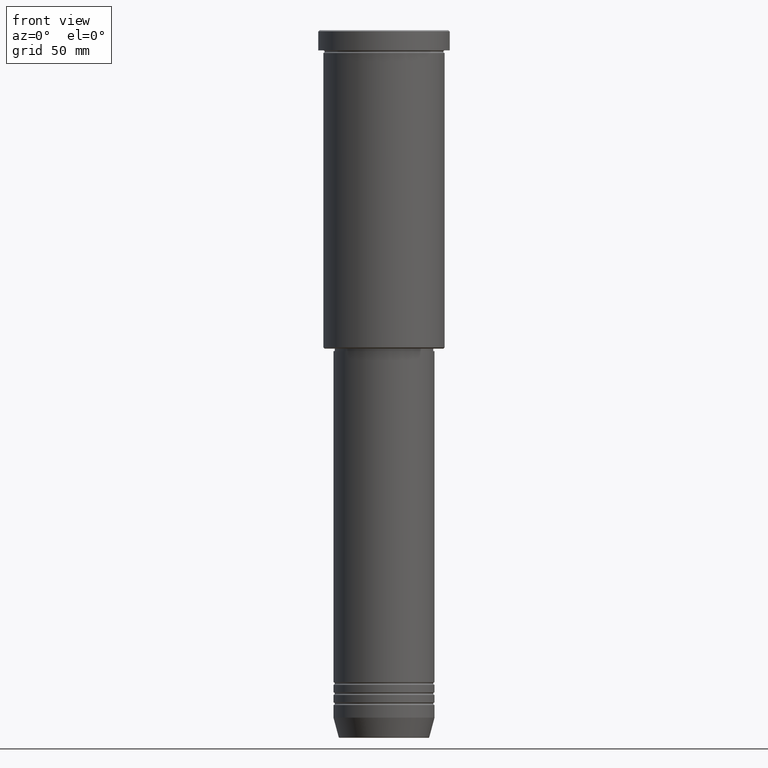
[diagram: clean part render]
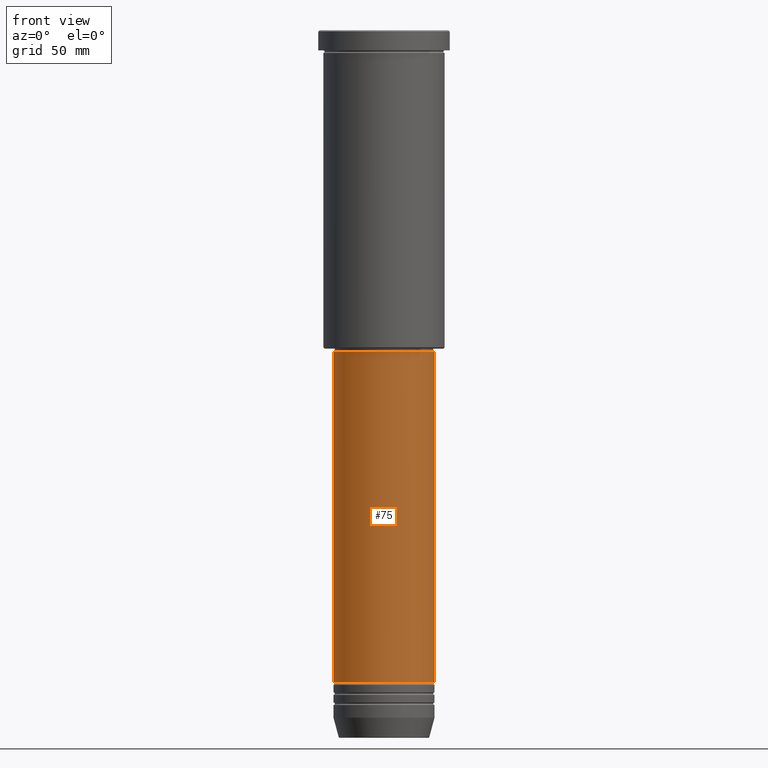
[diagram: same view with one face highlighted and labeled with its STEP entity id]
A machine part, front view. The second image highlights one B-rep face of the part: STEP entity #75.
In plain terms, the highlighted cylindrical surface (partial cylindrical patch) has radius 20 mm, axis along (-0, -0, 1).
Its self-contained STEP definition (entity closure, byte-faithful):
#75 = ADVANCED_FACE ( 'NONE', ( #859 ), #1032, .T. ) ;
#126 = DIRECTION ( 'NONE',  ( -0.000000000000000000, -0.000000000000000000, 1.000000000000000000 ) ) ;
#188 = VECTOR ( 'NONE', #260, 1000.000000000000000 ) ;
#203 = ORIENTED_EDGE ( 'NONE', *, *, #1016, .F. ) ;
#208 = CARTESIAN_POINT ( 'NONE',  ( 0.000000000000000000, 0.000000000000000000, -127.0000000000000000 ) ) ;
#225 = EDGE_CURVE ( 'NONE', #1064, #532, #780, .T. ) ;
#243 = ORIENTED_EDGE ( 'NONE', *, *, #645, .T. ) ;
#253 = LINE ( 'NONE', #275, #188 ) ;
#260 = DIRECTION ( 'NONE',  ( -0.000000000000000000, -0.000000000000000000, 1.000000000000000000 ) ) ;
#265 = VERTEX_POINT ( 'NONE', #291 ) ;
#275 = CARTESIAN_POINT ( 'NONE',  ( -20.00000000000000355, 2.449293598294706907E-15, 0.000000000000000000 ) ) ;
#277 = DIRECTION ( 'NONE',  ( -0.000000000000000000, -0.000000000000000000, 1.000000000000000000 ) ) ;
#279 = EDGE_CURVE ( 'NONE', #699, #265, #442, .T. ) ;
#291 = CARTESIAN_POINT ( 'NONE',  ( 20.00000000000000355, 0.000000000000000000, -127.0000000000000000 ) ) ;
#340 = EDGE_LOOP ( 'NONE', ( #203, #388, #243, #449 ) ) ;
#347 = AXIS2_PLACEMENT_3D ( 'NONE', #746, #773, #676 ) ;
#371 = CARTESIAN_POINT ( 'NONE',  ( -20.00000000000000355, 2.449293598294706907E-15, -127.0000000000000000 ) ) ;
#388 = ORIENTED_EDGE ( 'NONE', *, *, #225, .T. ) ;
#442 = CIRCLE ( 'NONE', #1027, 20.00000000000000355 ) ;
#449 = ORIENTED_EDGE ( 'NONE', *, *, #279, .F. ) ;
#464 = CARTESIAN_POINT ( 'NONE',  ( 20.00000000000000355, 0.000000000000000000, 0.000000000000000000 ) ) ;
#532 = VERTEX_POINT ( 'NONE', #806 ) ;
#610 = DIRECTION ( 'NONE',  ( 1.000000000000000000, 0.000000000000000000, 0.000000000000000000 ) ) ;
#621 = CARTESIAN_POINT ( 'NONE',  ( -20.00000000000000355, 2.449293598294706907E-15, -258.0000000000000000 ) ) ;
#645 = EDGE_CURVE ( 'NONE', #532, #265, #1091, .T. ) ;
#676 = DIRECTION ( 'NONE',  ( 1.000000000000000000, 0.000000000000000000, 0.000000000000000000 ) ) ;
#699 = VERTEX_POINT ( 'NONE', #371 ) ;
#746 = CARTESIAN_POINT ( 'NONE',  ( 0.000000000000000000, 0.000000000000000000, 0.000000000000000000 ) ) ;
#757 = AXIS2_PLACEMENT_3D ( 'NONE', #1133, #126, #610 ) ;
#773 = DIRECTION ( 'NONE',  ( -0.000000000000000000, -0.000000000000000000, 1.000000000000000000 ) ) ;
#780 = CIRCLE ( 'NONE', #757, 20.00000000000000355 ) ;
#806 = CARTESIAN_POINT ( 'NONE',  ( 20.00000000000000355, 0.000000000000000000, -258.0000000000000000 ) ) ;
#853 = DIRECTION ( 'NONE',  ( -0.000000000000000000, -0.000000000000000000, 1.000000000000000000 ) ) ;
#859 = FACE_OUTER_BOUND ( 'NONE', #340, .T. ) ;
#885 = VECTOR ( 'NONE', #277, 1000.000000000000000 ) ;
#917 = DIRECTION ( 'NONE',  ( 1.000000000000000000, 0.000000000000000000, 0.000000000000000000 ) ) ;
#1016 = EDGE_CURVE ( 'NONE', #1064, #699, #253, .T. ) ;
#1027 = AXIS2_PLACEMENT_3D ( 'NONE', #208, #853, #917 ) ;
#1032 = CYLINDRICAL_SURFACE ( 'NONE', #347, 20.00000000000000355 ) ;
#1064 = VERTEX_POINT ( 'NONE', #621 ) ;
#1091 = LINE ( 'NONE', #464, #885 ) ;
#1133 = CARTESIAN_POINT ( 'NONE',  ( 0.000000000000000000, 0.000000000000000000, -258.0000000000000000 ) ) ;